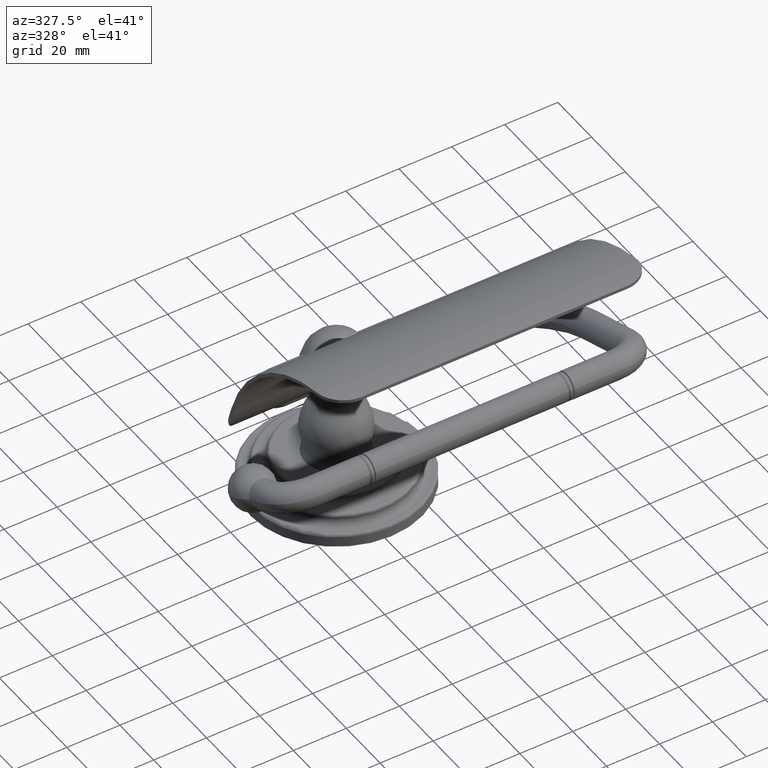
[diagram: clean part render]
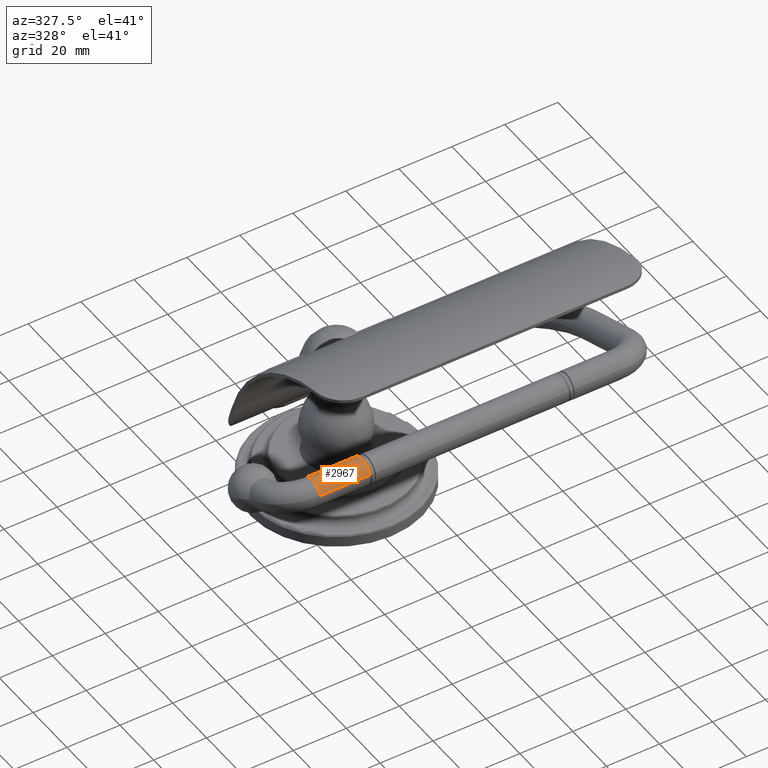
[diagram: same view with one face highlighted and labeled with its STEP entity id]
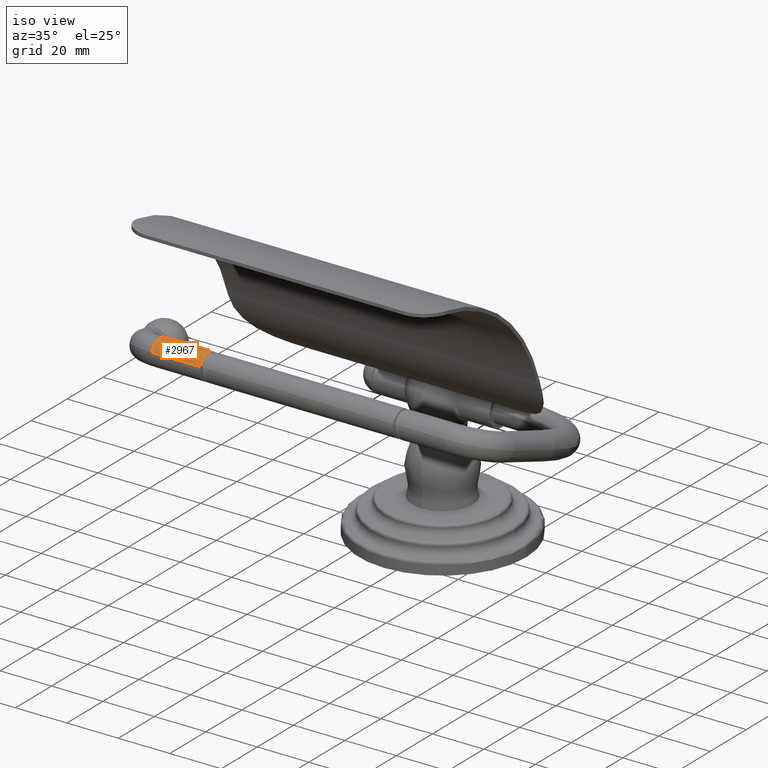
[diagram: same view with one face highlighted and labeled with its STEP entity id]
A machine part, auxiliary view. The second image highlights one B-rep face of the part: STEP entity #2967.
A second angle (iso view) of the same face is appended — the face is thin or edge-on in the first view.
In plain terms, the highlighted cylindrical surface (edge-blend (fillet) strip) has radius 5.0038 mm, axis along (-1, 0, 0).
Its self-contained STEP definition (entity closure, byte-faithful):
#1331=DIRECTION('',(-1.E0,0.E0,0.E0));
#1332=VECTOR('',#1331,7.470031251221E-1);
#1333=CARTESIAN_POINT('',(-1.502996874878E0,-2.774912309181E0,
2.956985483241E0));
#1334=LINE('',#1333,#1332);
#1335=CARTESIAN_POINT('',(-1.502996874878E0,-2.960031755476E0,
3.024363451476E0));
#1336=DIRECTION('',(-1.E0,0.E0,0.E0));
#1337=DIRECTION('',(0.E0,-9.396926207859E-1,3.420201433257E-1));
#1338=AXIS2_PLACEMENT_3D('',#1335,#1336,#1337);
#1340=DIRECTION('',(-1.E0,0.E0,0.E0));
#1341=VECTOR('',#1340,7.470031251221E-1);
#1342=CARTESIAN_POINT('',(-1.502996874878E0,-3.145151201770E0,
3.091741419711E0));
#1343=LINE('',#1342,#1341);
#1344=CARTESIAN_POINT('',(-2.25E0,-2.960031755476E0,3.024363451476E0));
#1345=DIRECTION('',(-1.E0,0.E0,0.E0));
#1346=DIRECTION('',(0.E0,-9.396926207859E-1,3.420201433257E-1));
#1347=AXIS2_PLACEMENT_3D('',#1344,#1345,#1346);
#1518=CARTESIAN_POINT('',(-2.25E0,-3.145151201770E0,3.091741419711E0));
#1519=CARTESIAN_POINT('',(-2.25E0,-2.774912309181E0,2.956985483241E0));
#1520=VERTEX_POINT('',#1518);
#1521=VERTEX_POINT('',#1519);
#1544=CARTESIAN_POINT('',(-1.502996874878E0,-3.145151201770E0,
3.091741419711E0));
#1545=CARTESIAN_POINT('',(-1.502996874878E0,-2.774912309181E0,
2.956985483241E0));
#1546=VERTEX_POINT('',#1544);
#1547=VERTEX_POINT('',#1545);
#2955=CARTESIAN_POINT('',(2.25E0,-2.960031755476E0,3.024363451476E0));
#2956=DIRECTION('',(-1.E0,0.E0,0.E0));
#2957=DIRECTION('',(0.E0,-9.396926207859E-1,3.420201433257E-1));
#2958=AXIS2_PLACEMENT_3D('',#2955,#2956,#2957);
#2959=CYLINDRICAL_SURFACE('',#2958,1.97E-1);
#2960=ORIENTED_EDGE('',*,*,#2920,.F.);
#2961=ORIENTED_EDGE('',*,*,#2950,.T.);
#2963=ORIENTED_EDGE('',*,*,#2962,.T.);
#2964=ORIENTED_EDGE('',*,*,#2946,.F.);
#2965=EDGE_LOOP('',(#2960,#2961,#2963,#2964));
#2966=FACE_OUTER_BOUND('',#2965,.F.);
#2967=ADVANCED_FACE('',(#2966),#2959,.T.);
#1339=CIRCLE('',#1338,1.97E-1);
#1348=CIRCLE('',#1347,1.97E-1);
#2920=EDGE_CURVE('',#1546,#1547,#1339,.T.);
#2946=EDGE_CURVE('',#1547,#1521,#1334,.T.);
#2950=EDGE_CURVE('',#1546,#1520,#1343,.T.);
#2962=EDGE_CURVE('',#1520,#1521,#1348,.T.);